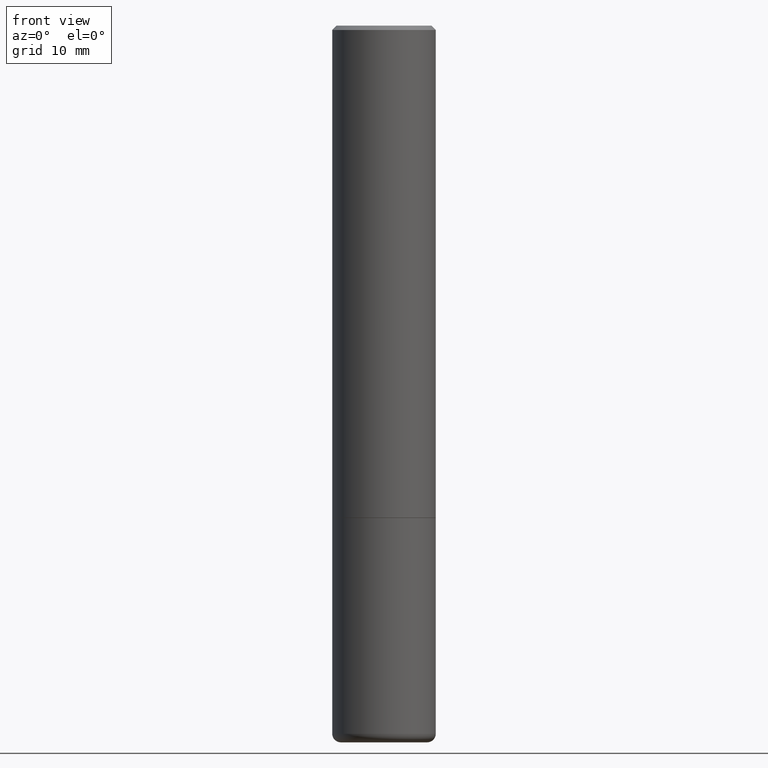
[diagram: clean part render]
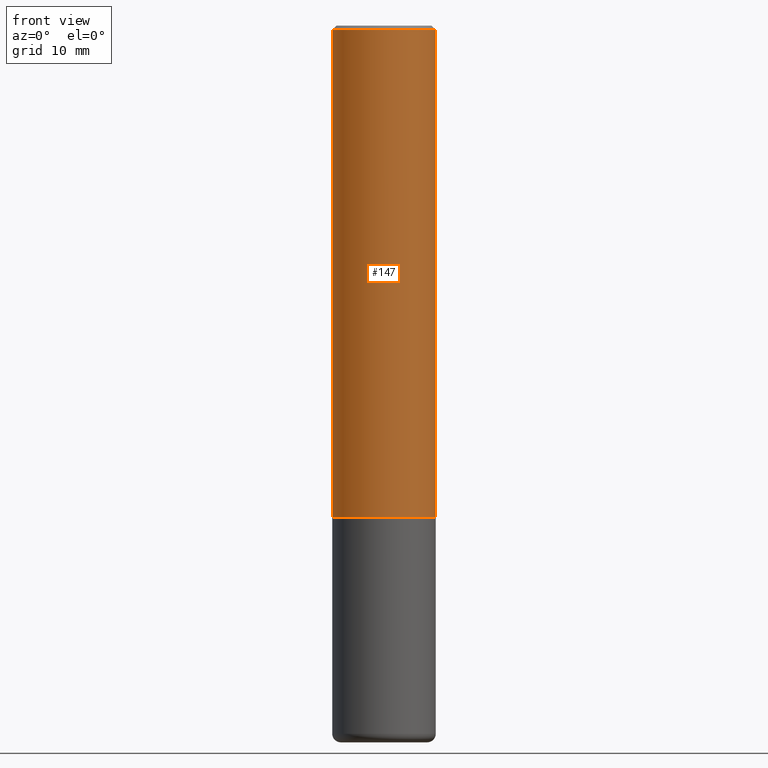
[diagram: same view with one face highlighted and labeled with its STEP entity id]
A machine part, front view. The second image highlights one B-rep face of the part: STEP entity #147.
In plain terms, the highlighted cylindrical surface (partial cylindrical patch) has radius 5.9995 mm, axis along (-0, 0, 1).
Its self-contained STEP definition (entity closure, byte-faithful):
#5 = CARTESIAN_POINT ( 'NONE',  ( 5.485431079153880270E-29, -7.831741791159060910E-15, -2.243100000000000094 ) ) ;
#12 = AXIS2_PLACEMENT_3D ( 'NONE', #411, #370, #207 ) ;
#51 = CIRCLE ( 'NONE', #292, 0.2362000000000002709 ) ;
#52 = DIRECTION ( 'NONE',  ( -2.445468806185136597E-29, 3.491481338843145583E-15, 1.000000000000000000 ) ) ;
#71 = DIRECTION ( 'NONE',  ( -2.445468806185136877E-29, 3.491481338843145188E-15, 1.000000000000000000 ) ) ;
#84 = VERTEX_POINT ( 'NONE', #199 ) ;
#86 = CARTESIAN_POINT ( 'NONE',  ( -0.2362000000000002986, -2.272483767102600582E-15, -2.243100000000000094 ) ) ;
#89 = EDGE_CURVE ( 'NONE', #287, #84, #196, .T. ) ;
#106 = FACE_OUTER_BOUND ( 'NONE', #192, .T. ) ;
#121 = ORIENTED_EDGE ( 'NONE', *, *, #89, .F. ) ;
#128 = VECTOR ( 'NONE', #71, 39.37007874015748143 ) ;
#147 = ADVANCED_FACE ( 'NONE', ( #106 ), #262, .T. ) ;
#148 = CARTESIAN_POINT ( 'NONE',  ( 0.2362000000000002709, -9.481117575628559013E-15, -2.243100000000000094 ) ) ;
#154 = CARTESIAN_POINT ( 'NONE',  ( 0.2361999999999999933, -1.690279253850498771E-15, -0.02000000000000005246 ) ) ;
#163 = DIRECTION ( 'NONE',  ( 1.000000000000000000, -6.982962677686266711E-15, 4.876176775795936353E-29 ) ) ;
#170 = CARTESIAN_POINT ( 'NONE',  ( -0.2362000000000001321, 1.678301941865357577E-15, -1.161852468318209457E-29 ) ) ;
#181 = ORIENTED_EDGE ( 'NONE', *, *, #396, .F. ) ;
#192 = EDGE_LOOP ( 'NONE', ( #121, #349, #352, #181 ) ) ;
#196 = LINE ( 'NONE', #170, #128 ) ;
#199 = CARTESIAN_POINT ( 'NONE',  ( -0.2361999999999999933, 1.579546157692633030E-15, -0.02000000000000005246 ) ) ;
#207 = DIRECTION ( 'NONE',  ( 1.000000000000000000, -6.982962677686266711E-15, 0.000000000000000000 ) ) ;
#234 = EDGE_CURVE ( 'NONE', #287, #272, #51, .T. ) ;
#262 = CYLINDRICAL_SURFACE ( 'NONE', #263, 0.2362000000000001321 ) ;
#263 = AXIS2_PLACEMENT_3D ( 'NONE', #296, #328, #163 ) ;
#272 = VERTEX_POINT ( 'NONE', #148 ) ;
#279 = DIRECTION ( 'NONE',  ( -2.445468806185136877E-29, 3.491481338843145188E-15, 1.000000000000000000 ) ) ;
#284 = VECTOR ( 'NONE', #279, 39.37007874015748143 ) ;
#287 = VERTEX_POINT ( 'NONE', #86 ) ;
#292 = AXIS2_PLACEMENT_3D ( 'NONE', #5, #52, #413 ) ;
#296 = CARTESIAN_POINT ( 'NONE',  ( 0.000000000000000000, 0.000000000000000000, 0.000000000000000000 ) ) ;
#328 = DIRECTION ( 'NONE',  ( -2.445468806185136597E-29, 3.491481338843145583E-15, 1.000000000000000000 ) ) ;
#349 = ORIENTED_EDGE ( 'NONE', *, *, #234, .T. ) ;
#352 = ORIENTED_EDGE ( 'NONE', *, *, #377, .T. ) ;
#365 = CIRCLE ( 'NONE', #12, 0.2361999999999999933 ) ;
#370 = DIRECTION ( 'NONE',  ( -2.445468806185136597E-29, 3.491481338843145583E-15, 1.000000000000000000 ) ) ;
#375 = CARTESIAN_POINT ( 'NONE',  ( 0.2362000000000001321, -1.649375784469497117E-15, 1.151752954443000789E-29 ) ) ;
#377 = EDGE_CURVE ( 'NONE', #272, #381, #399, .T. ) ;
#381 = VERTEX_POINT ( 'NONE', #154 ) ;
#396 = EDGE_CURVE ( 'NONE', #84, #381, #365, .T. ) ;
#399 = LINE ( 'NONE', #375, #284 ) ;
#411 = CARTESIAN_POINT ( 'NONE',  ( 4.890937612370285420E-31, -6.982962677686308865E-17, -0.02000000000000005246 ) ) ;
#413 = DIRECTION ( 'NONE',  ( 1.000000000000000000, -6.982962677686269077E-15, 0.000000000000000000 ) ) ;